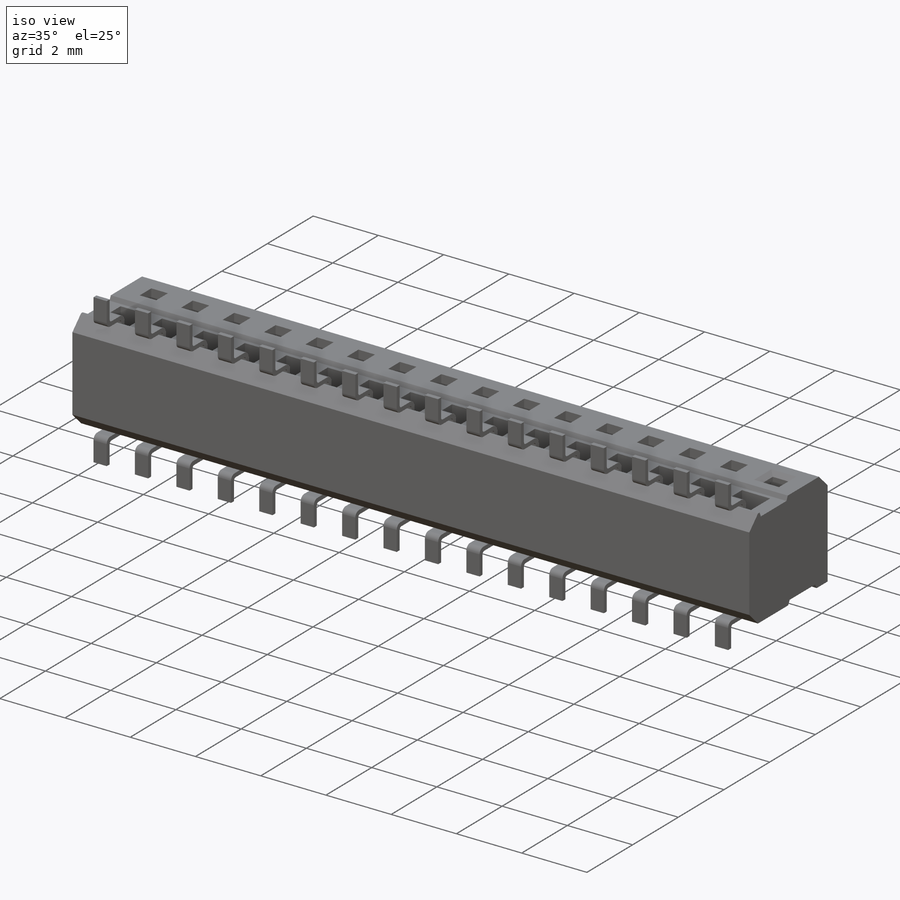
[diagram: iso view]
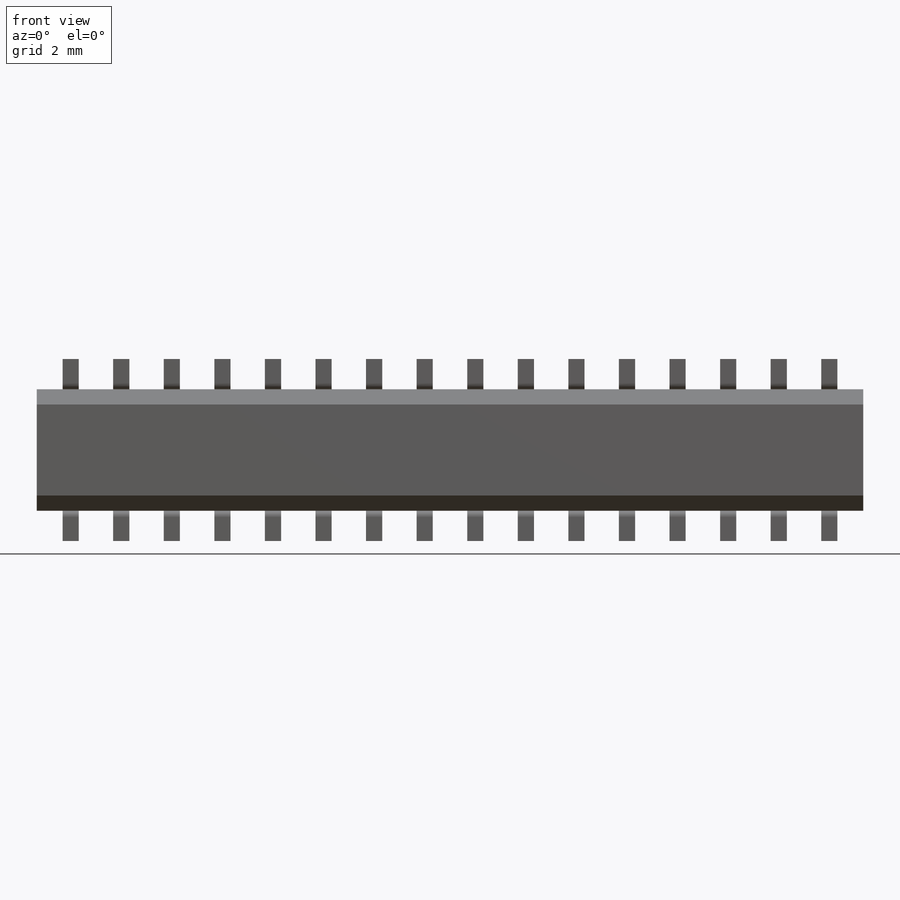
[diagram: front view]
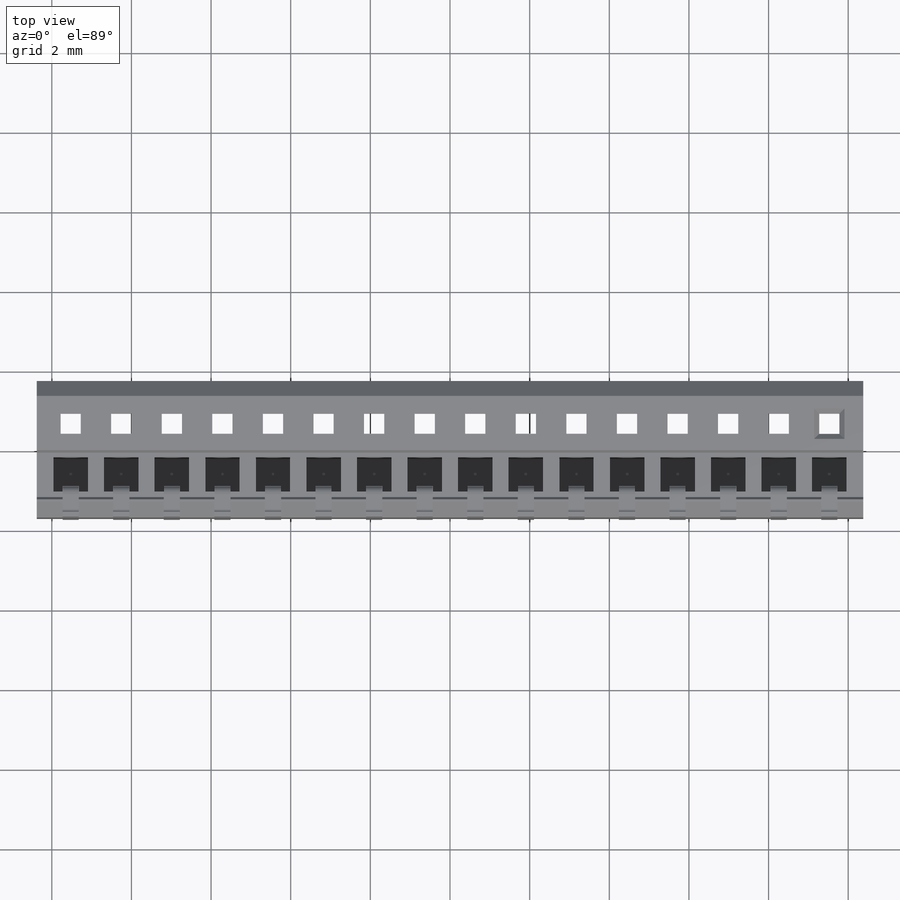
[diagram: top view]
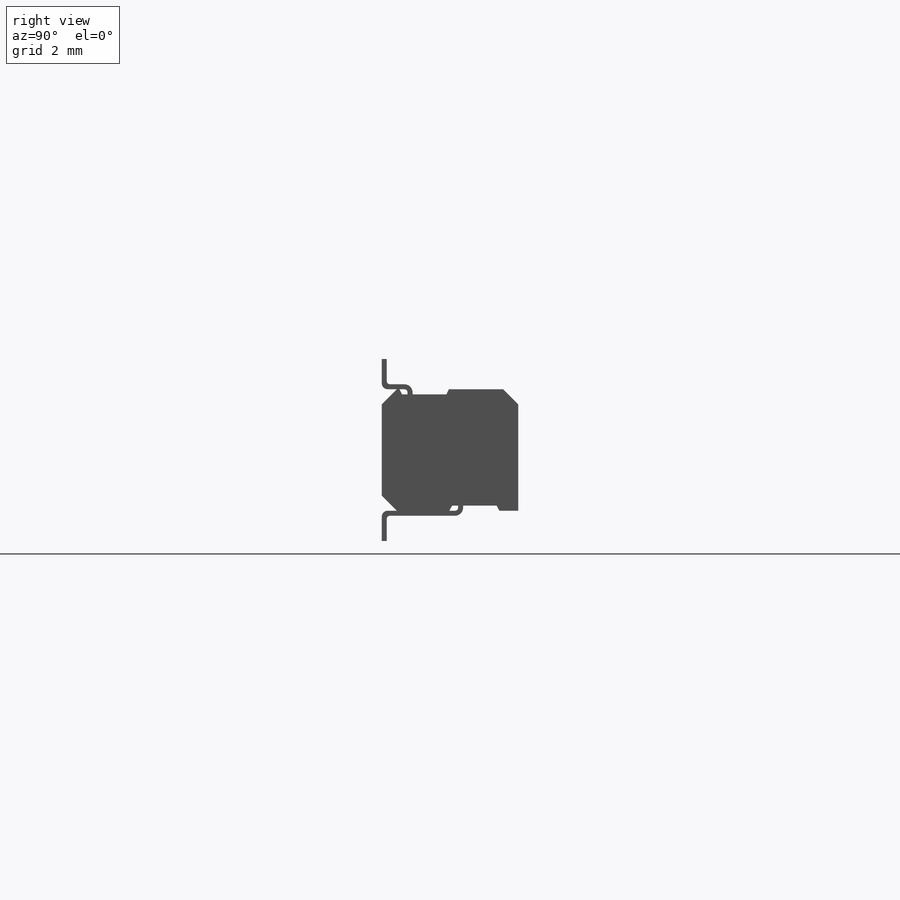
[diagram: right view]
SOLIDWORKS PART (.sldprt)
format: sldprt  version: not decoded by parser v0  size: 919,552 bytes
history: native  units: mm
features: sketch x7, extrude x3, chamfer x3, material x1, plane x1, cut_extrude x1, pattern_linear x1 (+13 scaffold rows collapsed)
feature tree (30):
  scaffold x13  (default folders/planes/origin — collapsed)
  material  "Material <not specified>"
  sketch  "Sketch1"  dims[D1=3.429mm D2=20.7518mm]
  extrude  "Main Body"  Depth=3.048mm
  plane  "Plane2"  Offset=0.8509mm
  sketch  "Sketch2"  dims[c1.D1=1.27mm c1.D2=0.635mm c1.D3=0.635mm c2.D1=1.2065mm c2.D4=~1.00076mm c2.D5=5.08mm c3.D1=~1.00076mm c3.D3=0.635mm c4.D1=~0.68326mm c4.D3=0.889mm c4.D4=0.508mm c4.D5=0.762mm c5.D4=1.27mm c5.D2=1.27mm c5.D1=0.635mm c6.D2=0.508mm c6.D3=0.635mm c6.D4=0.8509mm c6.D1=0.762mm c7.D3=0.508mm c7.D5=0.635mm c8.D3=0.508mm c8.D5=0.508mm c9.D3=0.762mm c9.D1=1.27mm c10.D3=0.508mm]
  cut_extrude  "Cut-Extrude1"  Depth=2.794mm
  chamfer  "Chamfer1"  Distance=0.127mm
  sketch  "Sketch6"  dims[c1.D2=2.54mm c1.D1=0.254mm c1.D3=1.8796mm c2.D1=2.54mm c2.D2=0.254mm c3.D1=~1.720175mm c3.D2=2.54mm c4.D1=0.127mm c4.D2=0.254mm c4.D3=0.3048mm c5.D2=0.3048mm c5.D4=0.254mm c5.D1=0.254mm c6.D2=0.254mm]
  sketch  "Sketch7"  dims[c1.D2=0.254mm c1.D1=2.159mm c2.D2=4.318mm c2.D4=0.889mm c2.D1=2.2479mm c3.D4=4.318mm c3.D5=0.762mm c3.D3=0.127mm]
  sketch  "Sketch30"  dims[c1.D1=0.254mm c1.D2=0.889mm c1.D3=0.8636mm c1.D4=1.27mm c1.D5=0.8636mm c1.D6=0.254mm c2.D2=0.762mm]
  chamfer  "Pin Cut-DH"  Distance=0.8636mm
  sketch  "Sketch10"  dims[c1.D2=0.254mm c1.D3=0.254mm c1.D1=0.381mm c2.D2=0.381mm c2.D3=~0.538815mm c3.D3=45.0deg c4.D3=~0.05842mm c4.D4=0.127mm c5.D3=~0.06858mm c5.D5=~0.05842mm c5.D6=1.1176mm c5.D7=0.127mm c5.D8=1.1176mm c5.D9=~0.06858mm c5.D10=~0.47498mm c5.D1=0.0mm c5.D2=0.381mm c6.D3=0.381mm]
  chamfer  "Body Cut-DH"  [1 undecoded]
  pattern_linear  "DH Cut Pattern"  Spacing1=1.27mm Spacing2=50mm  [1 undecoded]
  sketch  "Sketch11"  dims[c1.D1=0.0762mm c1.D2=0.127mm c1.D5=0.127mm c2.D2=0.127mm c2.D8=0.1524mm c2.D7=0.0762mm c2.D9=0.0762mm c2.D12=0.2032mm c2.D13=0.0762mm c2.D14=0.1524mm c2.D3=4.572mm c2.D4=2.286mm c3.D2=~1.18853mm c3.D3=4.572mm c3.D5=~1.258044mm c3.D7=0.5715mm c4.D5=0.5715mm c4.D3=0.762mm c5.D5=4.953mm c5.D2=4.572mm c6.D5=~0.80753mm c6.D7=0.381mm c6.D8=~1.448544mm c6.D9=0.0762mm c6.D10=0.762mm c6.D11=4.572mm c7.D5=~0.80753mm c7.D11=~0.813544mm c8.D5=0.762mm c8.D7=~0.42653mm c8.D10=0.762mm c9.D5=0.762mm c9.D2=0.0762mm c10.D5=0.762mm c10.D15=~0.68834mm c10.D16=0.1016mm c10.D3=~153.529934deg c10.D4=0.127mm c10.D6=0.127mm c11.D3=0.127mm]
  extrude  "Lead Pin-DH"  Depth=0.4064mm
  extrude  "Lead Pattern-DH"  Depth=0mm
decode coverage: 14 of 15 modeling features carry decoded parameters
note: ~ marks probable driven/reference dimensions
note: 2 parameter values undecoded
note: suppression state not decoded; provenance and decode notes live in map.json
